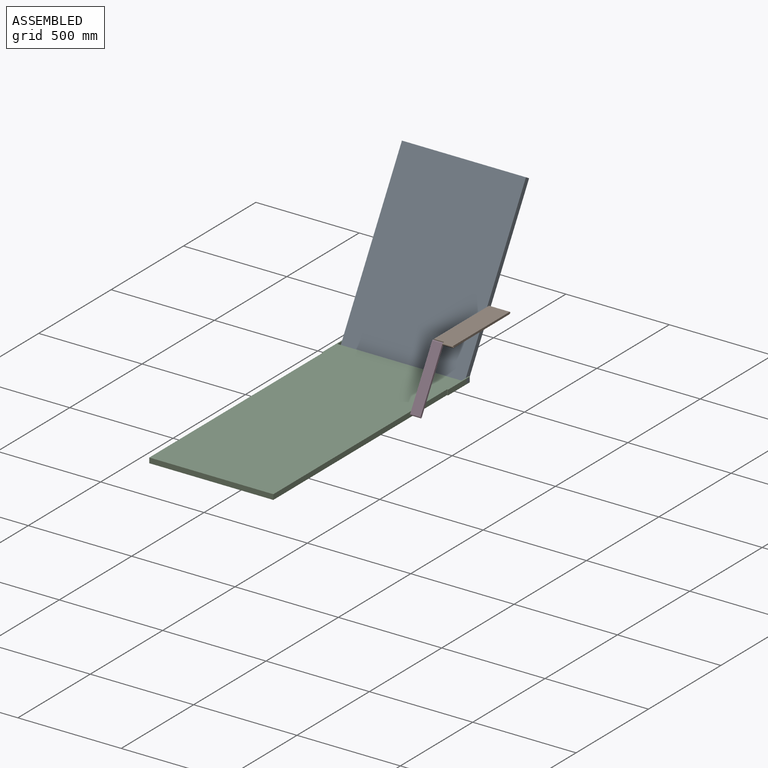
[diagram: assembled view]
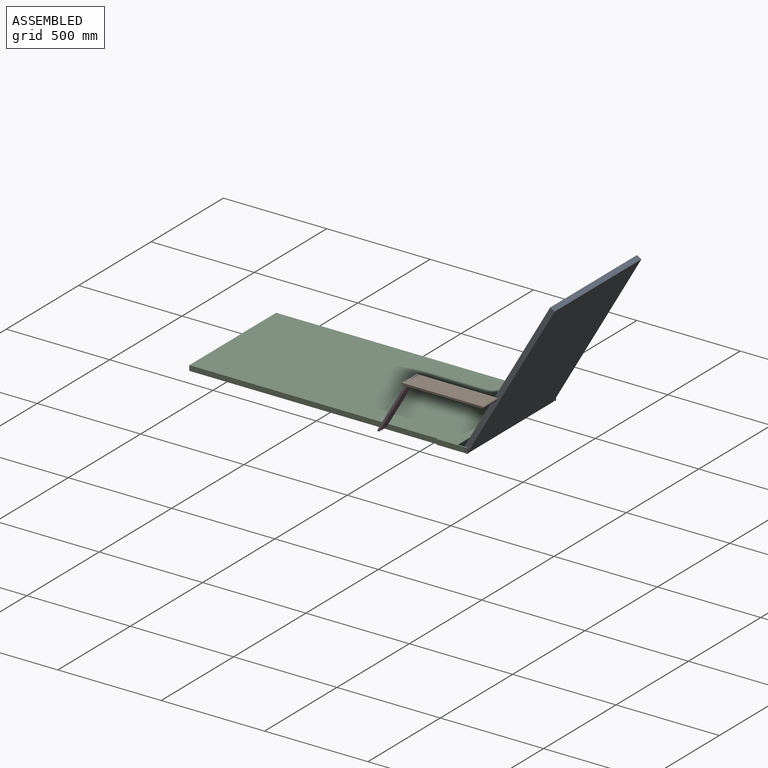
[diagram: assembled view, second angle]
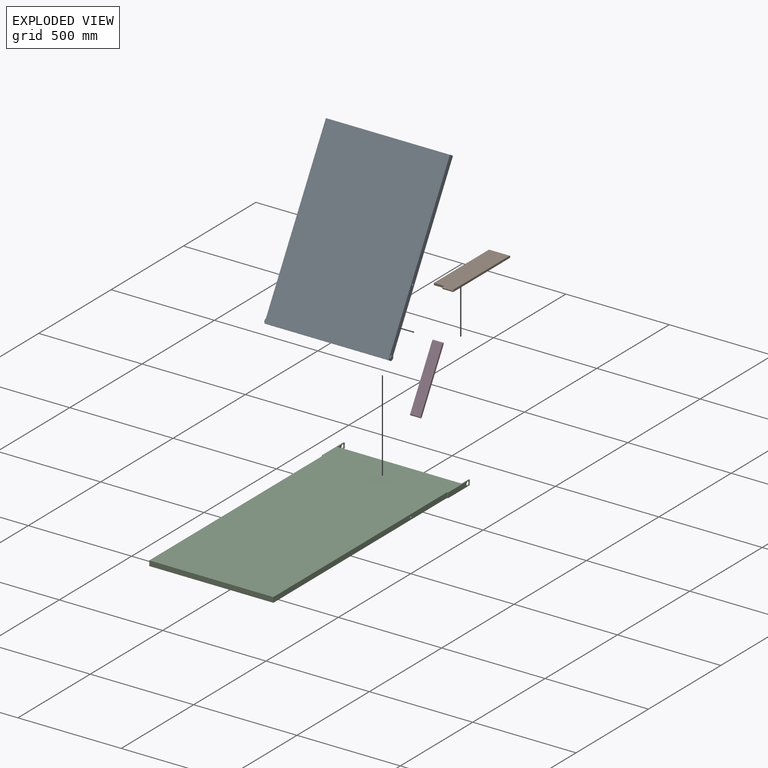
[diagram: exploded view]
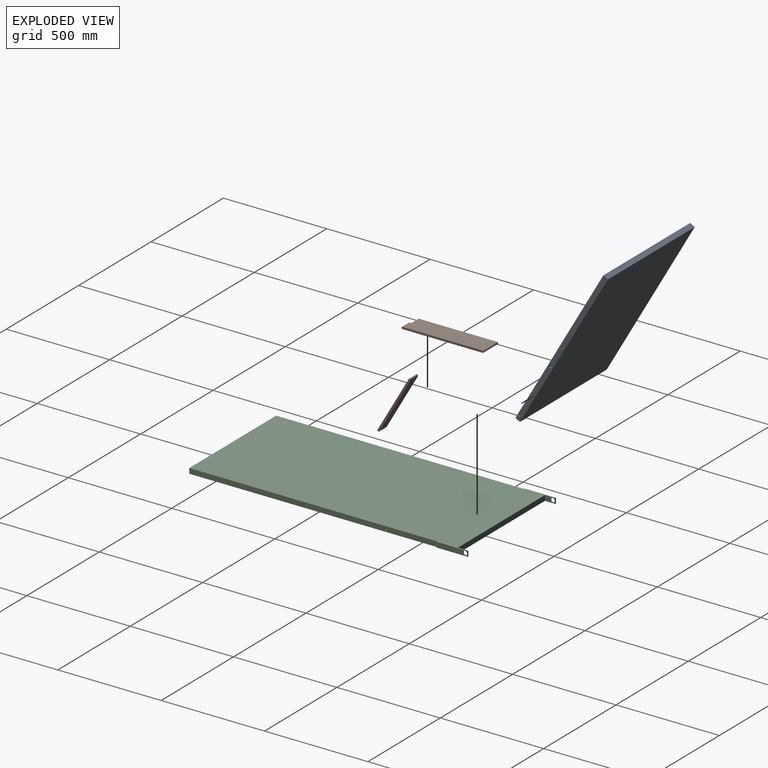
[diagram: exploded view, second angle]
ASSEMBLY  parts=4 mates=6
PART A: 11 faces, bbox 850x610x25 mm
  f0: plane 850x25mm, normal (0,-1,0), area 20840.8mm2, adj f1,f3,f4,f5,f8,f10
  f1: plane 600x25mm, normal (1,0,0), area 15000mm2, adj f0,f2,f4,f5
  f2: plane 850x25mm, normal (0,1,0), area 20840.8mm2, adj f1,f3,f4,f5,f7,f10
  f3: plane 600x25mm, normal (-1,0,0), area 15000mm2, adj f0,f2,f4,f5
  f4: plane 850x600mm, normal (0,0,1), area 510000mm2, adj f0,f1,f2,f3
  f5: plane 850x600mm, normal (0,0,-1), area 510000mm2, adj f0,f1,f2,f3
  f6: plane 20x20mm, normal (0,1,0), area 314.2mm2, adj f7
  f7: cylinder r=10mm len=20mm, axis (0,1,0), area 314.2mm2, adj f2,f6
  f8: cylinder r=10mm len=20mm, axis (0,1,0), area 314.2mm2, adj f0,f9
  f9: plane 20x20mm, normal (0,-1,0), area 314.2mm2, adj f8
  f10: cylinder r=5.5mm len=600mm, axis (0,-1,0), area 20734.5mm2, adj f0,f2
PART B: 9 faces, bbox 397.6x100x10 mm
  f0: plane 384.6x10mm, normal (0,1,0), area 3835.2mm2, adj f1,f2,f3,f6
  f1: plane 387.6x100mm, normal (0,0,1), area 38359.7mm2, adj f0,f2,f4,f5,f6,f7
  f2: cylinder r=5mm len=100mm, axis (0,1,0), area 1570.8mm2, adj f0,f1,f3,f5
  f3: plane 387.6x100mm, normal (0,0,-1), area 38359.7mm2, adj f0,f2,f4,f5,f6,f7
  f4: cylinder r=5mm len=50mm, axis (0,1,0), area 785.4mm2, adj f1,f3,f5,f7
  f5: plane 397.6x10mm, normal (0,-1,0), area 3926.2mm2, adj f1,f2,f3,f4,f8
  f6: plane 50x10mm, normal (1,0,0), area 500mm2, adj f0,f1,f3,f7
  f7: plane 13x10mm, normal (0,1,0), area 91mm2, adj f1,f3,f4,f6,f8
  f8: cylinder r=3mm len=50mm, axis (0,1,0), area 942.5mm2, adj f5,f7
PART C: 17 faces, bbox 610x1350x25 mm
  f0: plane 1200x25mm, normal (1,0,0), area 29905mm2, adj f1,f11,f12,f13,f16
  f1: plane 25x5mm, normal (0,-1,0), area 125mm2, adj f0,f2,f12,f13
  f2: plane 150x25mm, normal (1,0,0), area 3435.8mm2, adj f1,f3,f12,f13,f15
  f3: plane 25x5mm, normal (0,1,0), area 125mm2, adj f2,f4,f12,f13
  f4: plane 50x25mm, normal (-1,0,0), area 935.8mm2, adj f3,f5,f12,f13,f15
  f5: plane 600x25mm, normal (0,1,0), area 15000mm2, adj f4,f6,f12,f13
  f6: plane 50x25mm, normal (1,0,0), area 935.8mm2, adj f5,f7,f12,f13,f14
  f7: plane 25x5mm, normal (0,1,0), area 125mm2, adj f6,f8,f12,f13
  f8: plane 150x25mm, normal (-1,0,0), area 3435.8mm2, adj f7,f9,f12,f13,f14
  f9: plane 25x5mm, normal (0,-1,0), area 125mm2, adj f8,f10,f12,f13
  f10: plane 1200x25mm, normal (-1,0,0), area 29905mm2, adj f9,f11,f12,f13,f16
  f11: plane 600x25mm, normal (0,-1,0), area 15000mm2, adj f0,f10,f12,f13
  f12: plane 1350x610mm, normal (0,0,1), area 781500mm2, adj f0,f1,f2,f3,f4,f5,f6,f7
  f13: plane 1350x610mm, normal (0,0,-1), area 781500mm2, adj f0,f1,f2,f3,f4,f5,f6,f7
  f14: cylinder r=10mm len=20mm, axis (1,0,0), area 314.2mm2, adj f6,f8
  f15: cylinder r=10mm len=20mm, axis (1,0,0), area 314.2mm2, adj f2,f4
  f16: cylinder r=5.5mm len=600mm, axis (-1,0,0), area 20734.5mm2, adj f0,f10
PART D: 8 faces, bbox 312.9x50x10 mm
  f0: plane 302.92x50mm, normal (0,0,1), area 15145.8mm2, adj f1,f5,f6,f7
  f1: cylinder r=5mm len=50mm, axis (0,1,0), area 785.4mm2, adj f0,f2,f6,f7
  f2: plane 302.92x50mm, normal (0,0,-1), area 15145.8mm2, adj f1,f5,f6,f7
  f3: cylinder r=3mm len=50mm, axis (0,1,0), area 942.5mm2, adj f6,f7
  f4: cylinder r=3mm len=50mm, axis (0,1,0), area 942.5mm2, adj f6,f7
  f5: cylinder r=5mm len=50mm, axis (0,1,0), area 785.4mm2, adj f0,f2,f6,f7
  f6: plane 312.92x10mm, normal (0,-1,0), area 3051.1mm2, adj f0,f1,f2,f3,f4,f5
  f7: plane 312.92x10mm, normal (0,1,0), area 3051.1mm2, adj f0,f1,f2,f3,f4,f5
PLACE A rot(axis=(0.45,0.45,-0.77),104.5deg) t=(-51.37,964.44,254.72)mm
PLACE B rot(axis=(-0.71,0.71,0),180deg) t=(248.63,705.12,166.23)mm
PLACE C t=(-51.37,59.87,-108.77)mm fixed
PLACE D rot(axis=(0.45,-0.45,0.77),104.5deg) t=(248.63,435.6,35.07)mm
MATE cylindrical A.f7 <-> C.f14  axis (1,0,0) through (-356.37,747.37,-96.27)mm
MATE revolute C.f14 <-> A.f7  axis (-1,0,0) through (-356.37,747.37,-96.27)mm
MATE cylindrical B.f2 <-> A.f10  axis (-1,0,0) through (248.63,898.92,166.23)mm
MATE revolute B.f2 <-> A.f10  axis (-1,0,0) through (248.63,898.92,166.23)mm
MATE revolute D.f3 <-> B.f8  axis (1,0,0) through (298.63,511.33,166.23)mm
MATE revolute D.f4 <-> C.f16  axis (-1,0,0) through (248.63,359.87,-96.1)mm
